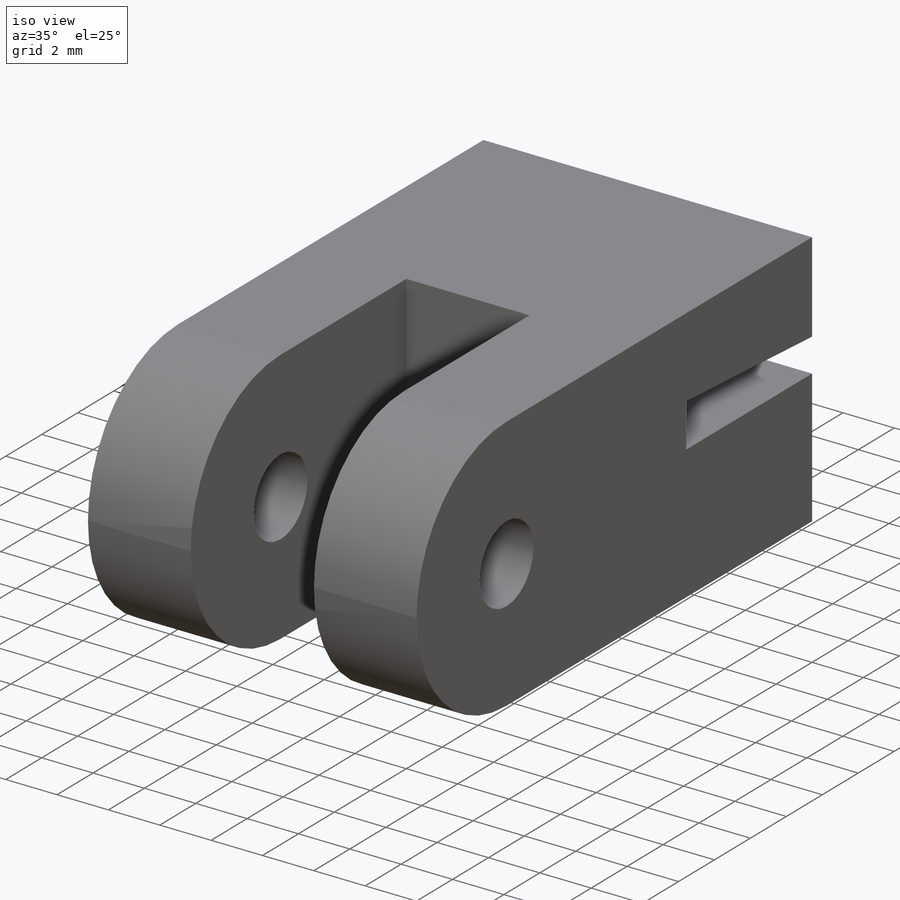
[diagram: iso view]
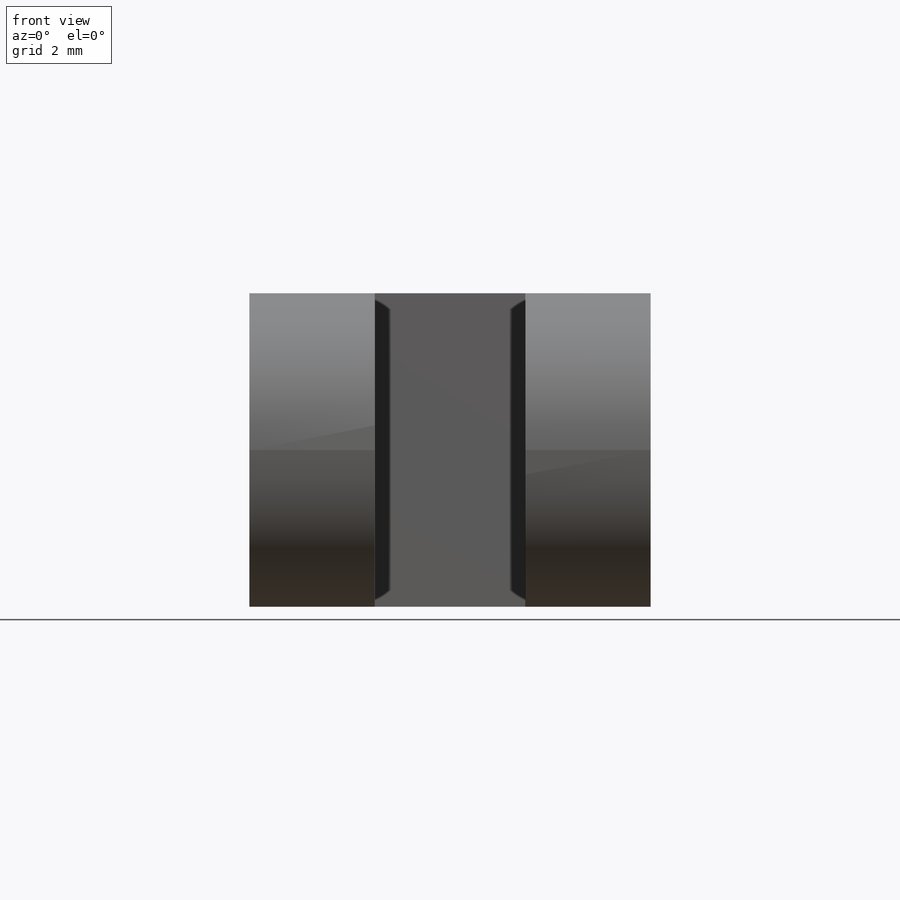
[diagram: front view]
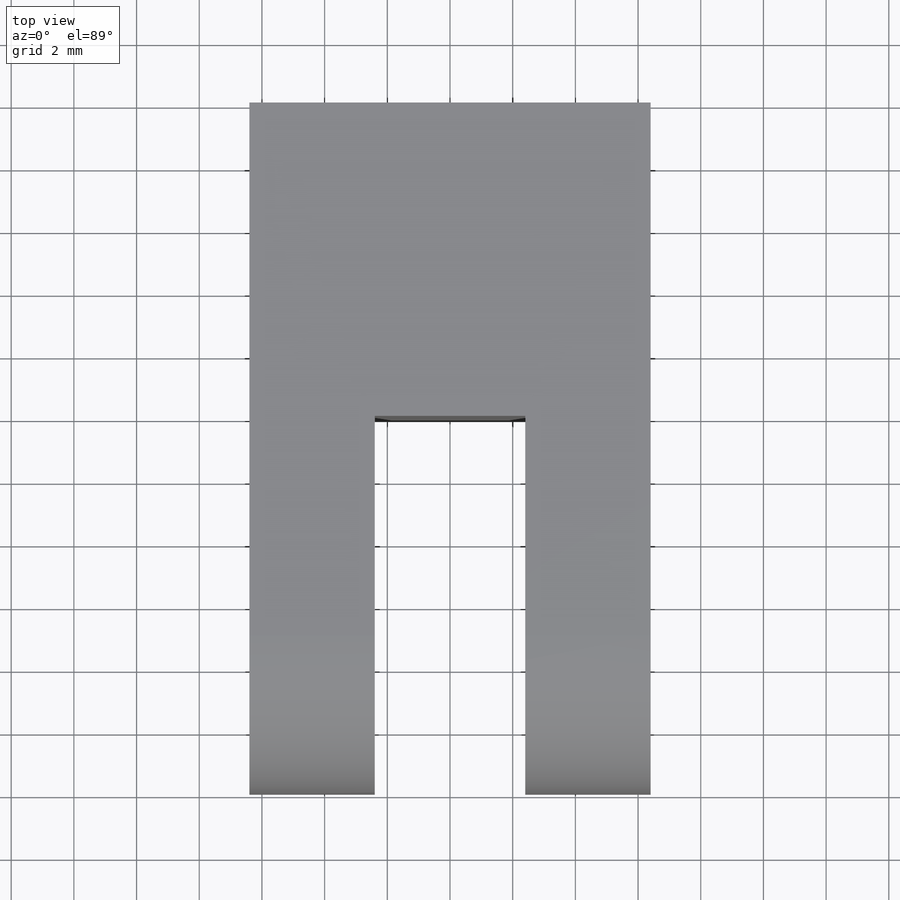
[diagram: top view]
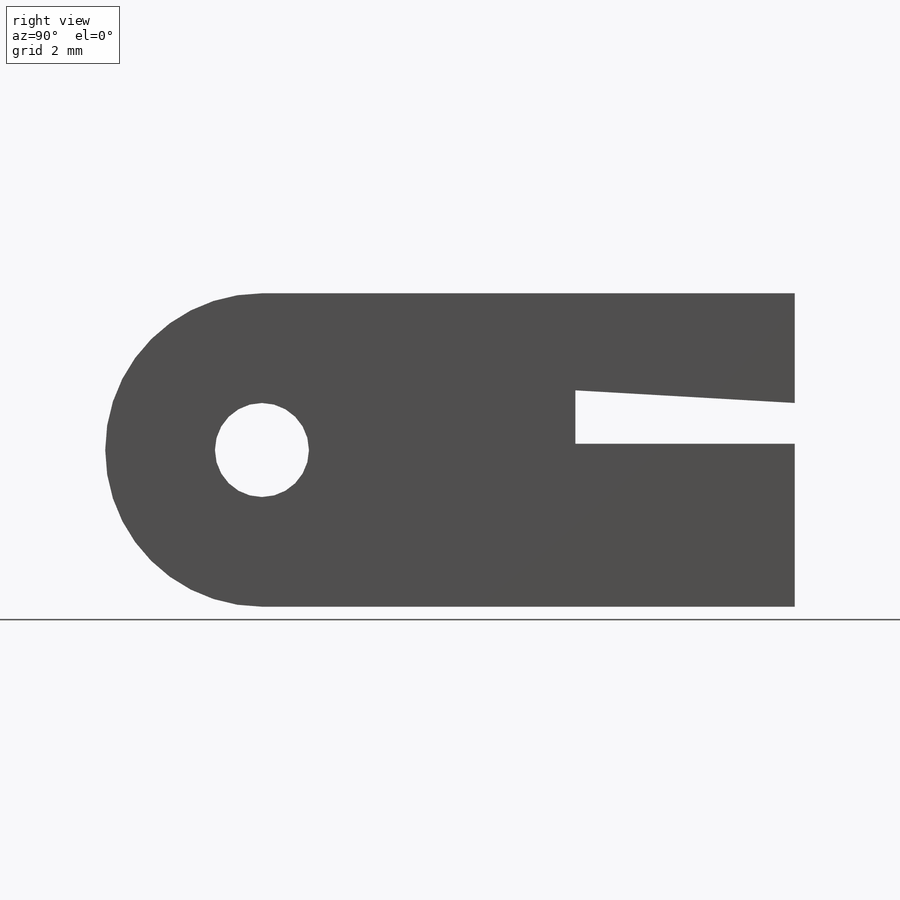
[diagram: right view]
SOLIDWORKS PART (.sldprt)
format: sldprt  version: not decoded by parser v0  size: 241,152 bytes
history: native  units: mm
features: sketch x10, extrude x5, cut_extrude x3, material x1, plane x1, fillet x1, hole x1 (+11 scaffold rows collapsed)
feature tree (33):
  scaffold x11  (default folders/planes/origin — collapsed)
  material  "Material <not specified>"
  sketch  "Sketch1"  dims[D8=2.15mm D9=2.15mm D1=8.0mm D2=12.8mm D3=1.5mm D4=1.3mm D5=5.0mm D6=3.0mm D7=3.0mm]
  extrude  "Boss-Extrude1"  Depth=10mm
  extrude  "Boss-Extrude2"  [1 undecoded]
  sketch  "Sketch1<3>"  dims[D1=7.0mm]
  cut_extrude  "Cut-Extrude1"  [1 undecoded]
  sketch  "Sketch1<5>"  dims[D1=7.0mm]
  cut_extrude  "Cut-Extrude2"  [1 undecoded]
  sketch  "Sketch1<6>"  dims[D1=10.0mm]
  sketch  "Sketch4"
  extrude  "Boss-Extrude3"  Depth=1mm
  sketch  "Sketch6"  dims[D1=~0.402752mm]
  cut_extrude  "Cut-Extrude3"  Depth=15mm
  sketch  "Sketch8"
  extrude  "Boss-Extrude4"  Depth=1mm
  plane  "Plane1"
  sketch  "Sketch10"  dims[D1=4.0mm D2=4.0mm]
  extrude  "Boss-Extrude5"  Depth=12mm
  fillet  "Fillet1"  Radius=5mm
  hole  "Hole1"  Diameter=3mm Depth=100mm
  sketch  "Sketch12"  dims[D1=5.0mm D2=5.0mm]
  sketch  "Sketch11"  dims[Diameter=3.0mm Depth=100.0mm]
decode coverage: 15 of 20 modeling features carry decoded parameters
note: ~ marks probable driven/reference dimensions
note: 3 parameter values undecoded
summary: no parameter record found for 3 features
note: suppression state not decoded; provenance and decode notes live in map.json
